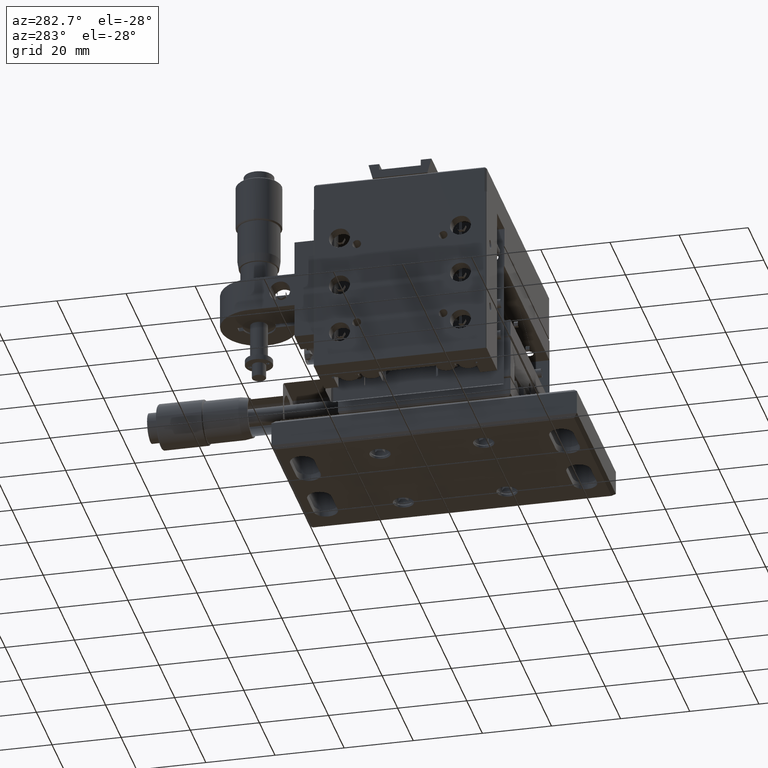
[diagram: clean part render]
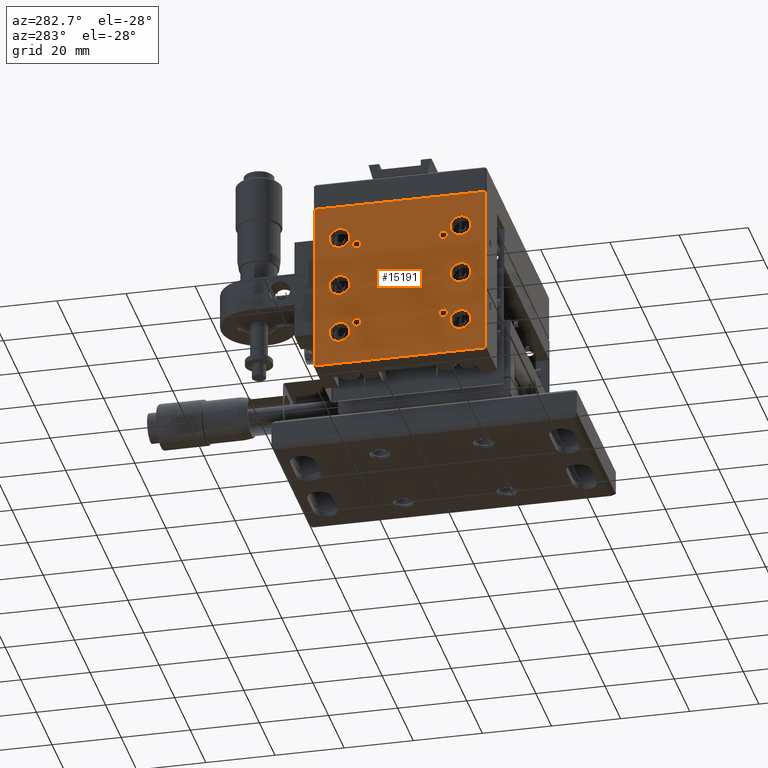
[diagram: same view with one face highlighted and labeled with its STEP entity id]
A machine part, auxiliary view. The second image highlights one B-rep face of the part: STEP entity #15191.
In plain terms, the highlighted face is a freeform B-spline surface patch.
Its self-contained STEP definition (entity closure, byte-faithful):
#11 = VERTEX_POINT ( 'NONE', #38533 ) ;
#68 = CARTESIAN_POINT ( 'NONE',  ( -45.58076767884060132, 11.21879193320685175, -1.596347866807579896 ) ) ;
#135 = CARTESIAN_POINT ( 'NONE',  ( -45.58076767884059421, 16.51599729023094554, 22.95852143334430551 ) ) ;
#402 = CARTESIAN_POINT ( 'NONE',  ( -45.58076767884060843, -13.99850119696787409, -1.154990000715617970 ) ) ;
#426 = CARTESIAN_POINT ( 'NONE',  ( -45.58076767884060843, 17.92438818958272506, 26.35894859904729159 ) ) ;
#446 = CARTESIAN_POINT ( 'NONE',  ( -45.58076767884061553, -21.83961083574874706, 8.175711831710218647 ) ) ;
#532 = CARTESIAN_POINT ( 'NONE',  ( -45.58076767884059421, -20.39673864300540629, -1.421798877075399314 ) ) ;
#632 = CARTESIAN_POINT ( 'NONE',  ( -45.58076767884060843, -16.24928257186590841, -1.755920477114400802 ) ) ;
#714 = CARTESIAN_POINT ( 'NONE',  ( -45.58076767884060132, 8.750717428134130671, 23.07812786181560227 ) ) ;
#995 = CARTESIAN_POINT ( 'NONE',  ( -45.58076767884059421, -17.37967613822270252, -2.906592281249516851 ) ) ;
#1158 = CARTESIAN_POINT ( 'NONE',  ( -45.58076767884059421, 13.16038916426250793, -6.824288168295513657 ) ) ;
#1202 = CARTESIAN_POINT ( 'NONE',  ( -45.58076767884060132, 15.39817349928732781, 7.578054600706568777 ) ) ;
#1280 = EDGE_LOOP ( 'NONE', ( #23987, #8813 ) ) ;
#1473 = CARTESIAN_POINT ( 'NONE',  ( -45.58076767884060132, 12.38131976557777136, 12.09352875609443601 ) ) ;
#1492 = CARTESIAN_POINT ( 'NONE',  ( -45.58076767884060132, -20.78010330397702177, 13.50179862840295186 ) ) ;
#1495 = CARTESIAN_POINT ( 'NONE',  ( -45.58076767884060132, -13.74928257186589953, -1.921872138184409939 ) ) ;
#1624 = CARTESIAN_POINT ( 'NONE',  ( -45.58076767884060843, 13.48549363764836073, -7.041343197752721217 ) ) ;
#1645 = CARTESIAN_POINT ( 'NONE',  ( -45.58076767884060132, 8.750717428134130671, -1.921872138184409939 ) ) ;
#1659 = CARTESIAN_POINT ( 'NONE',  ( -45.58076767884059421, 11.21900056668047263, 22.75272477057601961 ) ) ;
#1701 = CARTESIAN_POINT ( 'NONE',  ( -45.58076767884060843, 16.51594121857138120, 13.19759892138403501 ) ) ;
#1725 = CARTESIAN_POINT ( 'NONE',  ( -45.58076767884060132, -16.21735707694574558, -2.247396409549566876 ) ) ;
#1856 = CARTESIAN_POINT ( 'NONE',  ( -45.58076767884060132, 17.92438818953758783, -3.641051400913181357 ) ) ;
#1886 = CARTESIAN_POINT ( 'NONE',  ( -45.58076767884060132, 11.09213312086595771, 22.44682237214238540 ) ) ;
#1891 = CARTESIAN_POINT ( 'NONE',  ( -45.58076767884060132, 12.00071742813409870, 10.57812786181559872 ) ) ;
#1936 = CARTESIAN_POINT ( 'NONE',  ( -45.58076767884059421, 16.84104569200243517, 12.98054389190799718 ) ) ;
#1954 = CARTESIAN_POINT ( 'NONE',  ( -45.58076767884060843, -17.59697014863666809, 12.41835251884236335 ) ) ;
#2153 = CARTESIAN_POINT ( 'NONE',  ( -45.58076767884060843, 9.835325691214327648, -3.171798994635503632 ) ) ;
#2162 = VERTEX_POINT ( 'NONE', #4725 ) ;
#2324 = CARTESIAN_POINT ( 'NONE',  ( -45.58076767884060132, 18.00071742813410225, -4.421872138184409273 ) ) ;
#2354 = CARTESIAN_POINT ( 'NONE',  ( -45.58076767884059421, -14.36809825003078878, 21.98650354790006389 ) ) ;
#2561 = CARTESIAN_POINT ( 'NONE',  ( -45.58076767884060843, -21.51450636228194924, 22.95865680223612415 ) ) ;
#2812 = CARTESIAN_POINT ( 'NONE',  ( -45.58076767884059421, -15.32486281256795202, 21.85991819277547776 ) ) ;
#2966 = CARTESIAN_POINT ( 'NONE',  ( -45.58076767884060843, 10.16610916502605733, 24.32805471826214827 ) ) ;
#3010 = CARTESIAN_POINT ( 'NONE',  ( -45.58076767884060843, 9.369589087914782510, -3.013361300431705914 ) ) ;
#3022 = CARTESIAN_POINT ( 'NONE',  ( -45.58076767884059421, -20.78015937564045146, 22.65432172632728580 ) ) ;
#3206 = B_SPLINE_CURVE_WITH_KNOTS ( 'NONE', 3,
 ( #19752, #8725, #37077, #41083, #8278, #1936, #1701, #16209, #4993, #15974, #22563, #19285, #29809, #33556, #1473, #40844, #30499, #37306 ),
 .UNSPECIFIED., .F., .F.,
 ( 4, 2, 2, 2, 2, 2, 2, 2, 4 ),
 ( 0.000000000000000000, 0.1250000000000000000, 0.2500000000000000000, 0.3750000000000000000, 0.5000000000000000000, 0.6250000000000000000, 0.7500000000000000000, 0.8750000000000000000, 1.000000000000000000 ),
 .UNSPECIFIED. ) ;
#3292 = CARTESIAN_POINT ( 'NONE',  ( -45.58076767884060132, -16.99928257186589775, 10.57812786181559872 ) ) ;
#3458 = VERTEX_POINT ( 'NONE', #33040 ) ;
#3692 = CARTESIAN_POINT ( 'NONE',  ( -45.58076767884060132, 10.32624168718651703, -3.139946655567773082 ) ) ;
#4075 = CARTESIAN_POINT ( 'NONE',  ( -45.58076767884060132, 22.00072769059939759, 35.57812786181560227 ) ) ;
#4089 = VERTEX_POINT ( 'NONE', #32162 ) ;
#4176 = FACE_BOUND ( 'NONE', #35716, .T. ) ;
#4280 = CARTESIAN_POINT ( 'NONE',  ( -45.58076767884059421, -22.92316210437715895, -3.641172438193419403 ) ) ;
#4347 = CARTESIAN_POINT ( 'NONE',  ( -45.58076767884060132, -22.99928257186589775, -4.421872138184409273 ) ) ;
#4426 = CARTESIAN_POINT ( 'NONE',  ( -45.58076767884060132, -22.61888900547790371, 9.062848004871668195 ) ) ;
#4490 = CARTESIAN_POINT ( 'NONE',  ( -45.58076767884060132, 11.25071742813410047, 23.07812786181560227 ) ) ;
#4647 = CARTESIAN_POINT ( 'NONE',  ( -45.58076767884060132, 22.30071742813409941, 35.57812786181560227 ) ) ;
#4725 = CARTESIAN_POINT ( 'NONE',  ( -45.58076767884060132, -26.99927230940059530, 35.57812786181560227 ) ) ;
#4944 = CARTESIAN_POINT ( 'NONE',  ( -45.58076767884059421, 10.63190174997885507, 21.98650354790509809 ) ) ;
#4993 = CARTESIAN_POINT ( 'NONE',  ( -45.58076767884060843, 15.39817349923868584, 13.57805460070658476 ) ) ;
#5013 = CARTESIAN_POINT ( 'NONE',  ( -45.58076767884059421, -14.23240043439385083, -2.922653513068500963 ) ) ;
#5067 = CARTESIAN_POINT ( 'NONE',  ( -45.58076767884060132, 22.30071742813409941, 35.57812786181560227 ) ) ;
#5138 = CARTESIAN_POINT ( 'NONE',  ( -45.58076767884059421, 17.40313345824610280, -6.262200402050480008 ) ) ;
#5174 = CARTESIAN_POINT ( 'NONE',  ( -45.58076767884060132, 8.750717428134130671, 23.07812786181560227 ) ) ;
#5180 = CARTESIAN_POINT ( 'NONE',  ( -45.58076767884060132, 22.30071742813409941, 35.57812786181560227 ) ) ;
#5231 = CARTESIAN_POINT ( 'NONE',  ( -45.58076767884060132, -21.83950722885477091, 27.98044028510106784 ) ) ;
#5240 = CARTESIAN_POINT ( 'NONE',  ( -45.58076767884059421, -13.99839775637156514, -2.688857716266702003 ) ) ;
#5270 = CARTESIAN_POINT ( 'NONE',  ( -45.58076767884060132, 14.60326135700756822, 28.57820112293013182 ) ) ;
#5460 = CARTESIAN_POINT ( 'NONE',  ( -45.58076767884060132, -16.99928257186589775, 25.57812786181560227 ) ) ;
#5546 = B_SPLINE_CURVE_WITH_KNOTS ( 'NONE', 3,
 ( #29977, #12169, #37481, #26462, #23643, #34644, #2561, #3022, #20370, #38635, #38176, #9353, #23419, #30667, #9807, #30899, #27394, #41711 ),
 .UNSPECIFIED., .F., .F.,
 ( 4, 2, 2, 2, 2, 2, 2, 2, 4 ),
 ( 0.000000000000000000, 0.1250000000000000000, 0.2500000000000000000, 0.3750000000000000000, 0.5000000000000000000, 0.6250000000000000000, 0.7500000000000000000, 0.8750000000000000000, 1.000000000000000000 ),
 .UNSPECIFIED. ) ;
#5666 = CARTESIAN_POINT ( 'NONE',  ( -45.58076767884060132, 10.76759956560754183, -2.922653513076233889 ) ) ;
#5703 = CARTESIAN_POINT ( 'NONE',  ( -45.58076767884059421, -22.40169860196120410, 12.41845612570632973 ) ) ;
#5794 = CARTESIAN_POINT ( 'NONE',  ( -45.58076767884059421, 11.09234175432982639, 23.70931217136817892 ) ) ;
#5859 = EDGE_CURVE ( 'NONE', #14958, #23231, #6290, .T. ) ;
#6030 = CARTESIAN_POINT ( 'NONE',  ( -45.58076767884060843, 9.233835290682856467, 24.07890923673190287 ) ) ;
#6109 = CARTESIAN_POINT ( 'NONE',  ( -45.58076767884060132, 22.00072769059939759, 35.57812786181560227 ) ) ;
#6290 = B_SPLINE_CURVE_WITH_KNOTS ( 'NONE', 3,
 ( #42842, #10708, #23463, #19960, #6744, #12920, #3010, #17506, #2153, #31796, #3692, #37770, #5666, #31573, #34238, #39300, #46143, #16421 ),
 .UNSPECIFIED., .F., .F.,
 ( 4, 2, 2, 2, 2, 2, 2, 2, 4 ),
 ( 0.000000000000000000, 0.1250000000000000000, 0.2500000000000000000, 0.3750000000000000000, 0.5000000000000000000, 0.6250000000000000000, 0.7500000000000000000, 0.8750000000000000000, 1.000000000000000000 ),
 .UNSPECIFIED. ) ;
#6340 = CARTESIAN_POINT ( 'NONE',  ( -45.58076767884060132, 17.62011509069057169, 9.062726967611869355 ) ) ;
#6369 = ORIENTED_EDGE ( 'NONE', *, *, #27596, .T. ) ;
#6368 = ORIENTED_EDGE ( 'NONE', *, *, #11166, .T. ) ;
#6561 = CARTESIAN_POINT ( 'NONE',  ( -45.58076767884059421, 16.84094208514150637, 8.175815438562381132 ) ) ;
#6569 = EDGE_LOOP ( 'NONE', ( #28292, #44455 ) ) ;
#6731 = CARTESIAN_POINT ( 'NONE',  ( -45.58076767884060843, -21.51450636222868340, -7.041343197774933671 ) ) ;
#6744 = CARTESIAN_POINT ( 'NONE',  ( -45.58076767884060843, 8.999936053231385458, -2.688754275643967073 ) ) ;
#6863 = CARTESIAN_POINT ( 'NONE',  ( -45.58076767884060132, 9.233835290676427832, -0.9210907632769838038 ) ) ;
#6955 = CARTESIAN_POINT ( 'NONE',  ( -45.58076767884059421, -16.00016738737126687, -1.154886560117713623 ) ) ;
#7090 = CARTESIAN_POINT ( 'NONE',  ( -45.58076767884060132, 8.750717428134130671, -1.921872138184409939 ) ) ;
#7185 = CARTESIAN_POINT ( 'NONE',  ( -45.58076767884060132, -13.74928257186589953, -1.921872138184409939 ) ) ;
#7392 = CARTESIAN_POINT ( 'NONE',  ( -45.58076767884059421, 8.782434289587767395, 23.40353095303091990 ) ) ;
#7597 = EDGE_CURVE ( 'NONE', #16460, #9784, #3206, .T. ) ;
#7631 = CARTESIAN_POINT ( 'NONE',  ( -45.58076767884059421, 13.16038916425314653, 23.17571183171938642 ) ) ;
#7659 = CARTESIAN_POINT ( 'NONE',  ( -45.58076767884060132, -15.63046689371206810, -0.8302478242799661290 ) ) ;
#7705 = ORIENTED_EDGE ( 'NONE', *, *, #25691, .T. ) ;
#7934 = CARTESIAN_POINT ( 'NONE',  ( -45.58076767884060132, -22.99928257186589775, 10.57812786181559872 ) ) ;
#7994 = CARTESIAN_POINT ( 'NONE',  ( -45.58076767884059421, 8.909093101913111212, 22.44694355229977489 ) ) ;
#8019 = CARTESIAN_POINT ( 'NONE',  ( -45.58076767884060132, -19.60182650072639987, -1.421945399293402579 ) ) ;
#8172 = VERTEX_POINT ( 'NONE', #19580 ) ;
#8239 = CARTESIAN_POINT ( 'NONE',  ( -45.58076767884060843, 12.59840500484885517, 8.737903204823048497 ) ) ;
#8256 = CARTESIAN_POINT ( 'NONE',  ( -45.58076767884060132, -20.78010330398663186, -1.498201371595712539 ) ) ;
#8278 = CARTESIAN_POINT ( 'NONE',  ( -45.58076767884060843, 17.40302985138516689, 12.41835251884239710 ) ) ;
#8330 = B_SPLINE_CURVE_WITH_KNOTS ( 'NONE', 3,
 ( #5174, #44080, #12189, #7994, #29761, #40334, #37263, #15693, #43858, #11957, #19469, #4944, #33742, #22277, #1886, #1659, #15932, #4490 ),
 .UNSPECIFIED., .F., .F.,
 ( 4, 2, 2, 2, 2, 2, 2, 2, 4 ),
 ( 0.000000000000000000, 0.1250000000000000000, 0.2500000000000000000, 0.3750000000000000000, 0.5000000000000000000, 0.6250000000000000000, 0.7500000000000000000, 0.8750000000000000000, 1.000000000000000000 ),
 .UNSPECIFIED. ) ;
#8389 = B_SPLINE_CURVE_WITH_KNOTS ( 'NONE', 3,
 ( #12627, #22936, #22708, #33241, #12154, #1158, #1624, #29731, #29961, #36992, #44278, #15896, #30420, #5138, #19435, #41696, #34398, #28062 ),
 .UNSPECIFIED., .F., .F.,
 ( 4, 2, 2, 2, 2, 2, 2, 2, 4 ),
 ( 0.000000000000000000, 0.1250000000000000000, 0.2500000000000000000, 0.3750000000000000000, 0.5000000000000000000, 0.6250000000000000000, 0.7500000000000000000, 0.8750000000000000000, 1.000000000000000000 ),
 .UNSPECIFIED. ) ;
#8578 = CARTESIAN_POINT ( 'NONE',  ( -45.58076767884060132, -26.99927230940059530, 35.57812786181560227 ) ) ;
#8725 = CARTESIAN_POINT ( 'NONE',  ( -45.58076767884059421, 18.00071742813408093, 10.97576088579610065 ) ) ;
#8737 = CARTESIAN_POINT ( 'NONE',  ( -45.58076767884060843, -17.07561181043661946, 26.35894859907757137 ) ) ;
#8813 = ORIENTED_EDGE ( 'NONE', *, *, #43844, .T. ) ;
#8945 = B_SPLINE_CURVE_WITH_KNOTS ( 'NONE', 3,
 ( #25432, #32441, #39738, #42341, #43030, #7631, #14183, #17235, #17699, #35273, #17462, #135, #10667, #21913, #31756, #42569, #36205, #31982 ),
 .UNSPECIFIED., .F., .F.,
 ( 4, 2, 2, 2, 2, 2, 2, 2, 4 ),
 ( 0.000000000000000000, 0.1250000000000000000, 0.2500000000000000000, 0.3750000000000000000, 0.5000000000000000000, 0.6250000000000000000, 0.7500000000000000000, 0.8750000000000000000, 1.000000000000000000 ),
 .UNSPECIFIED. ) ;
#9004 = CARTESIAN_POINT ( 'NONE',  ( -45.58076767884060132, 14.21989669602791828, 28.50179862841047651 ) ) ;
#9198 = CARTESIAN_POINT ( 'NONE',  ( -45.58076767884060843, -22.61868023442222508, 27.09352875603163113 ) ) ;
#9300 = CARTESIAN_POINT ( 'NONE',  ( -45.58076767884059421, 11.25071742813410225, 23.24369638651652537 ) ) ;
#9353 = CARTESIAN_POINT ( 'NONE',  ( -45.58076767884059421, -18.48400270977244375, 22.95852143334093043 ) ) ;
#9439 = CARTESIAN_POINT ( 'NONE',  ( -45.58076767884060843, -18.48405878140675185, 13.19759892138401725 ) ) ;
#9526 = CARTESIAN_POINT ( 'NONE',  ( -45.58076767884060132, 11.25071742813410047, 23.07812786181560227 ) ) ;
#9784 = VERTEX_POINT ( 'NONE', #40711 ) ;
#9807 = CARTESIAN_POINT ( 'NONE',  ( -45.58076767884060132, -17.37988490930938923, 24.06272696770651720 ) ) ;
#9974 = CARTESIAN_POINT ( 'NONE',  ( -45.58076767884060843, 10.63184576832021477, 24.16961702406754142 ) ) ;
#10046 = CARTESIAN_POINT ( 'NONE',  ( -45.58076767884060132, -13.74928257186589953, 23.07812786181560227 ) ) ;
#10361 = CARTESIAN_POINT ( 'NONE',  ( -45.58076767884060843, 9.675193169075331667, -0.7037976208074270268 ) ) ;
#10460 = CARTESIAN_POINT ( 'NONE',  ( -45.58076767884060132, -16.99928257186590486, -4.819888405889766858 ) ) ;
#10464 = CARTESIAN_POINT ( 'NONE',  ( -45.58076767884060843, -14.36815423166413552, -0.8303829759370614516 ) ) ;
#10497 = FACE_BOUND ( 'NONE', #44097, .T. ) ;
#10640 = ORIENTED_EDGE ( 'NONE', *, *, #26484, .T. ) ;
#10667 = CARTESIAN_POINT ( 'NONE',  ( -45.58076767884060132, 16.84094208517106850, 23.17581543859200011 ) ) ;
#10704 = ORIENTED_EDGE ( 'NONE', *, *, #19588, .T. ) ;
#10706 = CARTESIAN_POINT ( 'NONE',  ( -45.58076767884060132, 12.00071742813409870, -4.421872138184409273 ) ) ;
#10708 = CARTESIAN_POINT ( 'NONE',  ( -45.58076767884059421, 8.750717428134137776, -2.087440662865537533 ) ) ;
#10727 = FACE_BOUND ( 'NONE', #37861, .T. ) ;
#11132 = CARTESIAN_POINT ( 'NONE',  ( -45.58076767884060132, 8.750717428134130671, 23.07812786181560227 ) ) ;
#11166 = EDGE_CURVE ( 'NONE', #34585, #34847, #11779, .T. ) ;
#11271 = CARTESIAN_POINT ( 'NONE',  ( -45.58076767884060132, 18.00071742813410225, 10.57812786181559872 ) ) ;
#11650 = CARTESIAN_POINT ( 'NONE',  ( -45.58076767884060132, 12.00071742813409870, 25.57812786181560227 ) ) ;
#11672 = CARTESIAN_POINT ( 'NONE',  ( -45.58076767884060132, -17.37988490930939278, 9.062726967589805227 ) ) ;
#11779 = B_SPLINE_CURVE_WITH_KNOTS ( 'NONE', 3,
 ( #7185, #14682, #32469, #35763, #402, #39770, #10464, #25697, #21469, #24758, #39059, #7659, #43295, #6955, #40000, #21240, #632, #18437 ),
 .UNSPECIFIED., .F., .F.,
 ( 4, 2, 2, 2, 2, 2, 2, 2, 4 ),
 ( 0.000000000000000000, 0.1249999999999995559, 0.2499999999999991118, 0.3749999999999986677, 0.4999999999999982236, 0.6249999999999977796, 0.7499999999999985567, 0.8749999999999993339, 1.000000000000000000 ),
 .UNSPECIFIED. ) ;
#11921 = VERTEX_POINT ( 'NONE', #3292 ) ;
#11957 = CARTESIAN_POINT ( 'NONE',  ( -45.58076767884059421, 10.16610916505379869, 21.82805471827589727 ) ) ;
#11966 = CARTESIAN_POINT ( 'NONE',  ( -45.58076767884061553, 15.78153816021233347, 7.654457095203651029 ) ) ;
#12120 = FACE_BOUND ( 'NONE', #1280, .T. ) ;
#12154 = CARTESIAN_POINT ( 'NONE',  ( -45.58076767884060843, 12.59840500488652104, -6.262096795192582555 ) ) ;
#12169 = CARTESIAN_POINT ( 'NONE',  ( -45.58076767884059421, -22.99928257186590486, 25.18049483781102893 ) ) ;
#12189 = CARTESIAN_POINT ( 'NONE',  ( -45.58076767884060843, 8.782642923076926067, 22.75260359041863012 ) ) ;
#12222 = EDGE_CURVE ( 'NONE', #3458, #11, #33405, .T. ) ;
#12354 = FACE_OUTER_BOUND ( 'NONE', #33828, .T. ) ;
#12483 = CARTESIAN_POINT ( 'NONE',  ( -45.58076767884059421, -19.21840576816413915, 28.50193399730944677 ) ) ;
#12491 = CARTESIAN_POINT ( 'NONE',  ( -45.58076767884060132, -16.99928257186589775, 10.57812786181559872 ) ) ;
#12495 = CARTESIAN_POINT ( 'NONE',  ( -45.58076767884059421, -16.00006394677960486, -2.688754275637528224 ) ) ;
#12528 = ORIENTED_EDGE ( 'NONE', *, *, #36225, .T. ) ;
#12555 = EDGE_CURVE ( 'NONE', #27737, #36641, #16638, .T. ) ;
#12627 = CARTESIAN_POINT ( 'NONE',  ( -45.58076767884060132, 12.00071742813409870, -4.421872138184409273 ) ) ;
#12659 = CARTESIAN_POINT ( 'NONE',  ( -45.58076767884059421, -13.78099943331952559, 22.75272477058241805 ) ) ;
#12911 = VERTEX_POINT ( 'NONE', #714 ) ;
#12920 = CARTESIAN_POINT ( 'NONE',  ( -45.58076767884059421, 9.233731850070475033, -2.922756953691232784 ) ) ;
#12949 = CARTESIAN_POINT ( 'NONE',  ( -45.58076767884060843, -18.48405878137706893, 28.19759892138955593 ) ) ;
#12979 = CARTESIAN_POINT ( 'NONE',  ( -45.58076767884059421, -13.78120806679575594, 23.40365213318358428 ) ) ;
#12985 = CARTESIAN_POINT ( 'NONE',  ( -45.58076767884059421, 13.48543756604987998, 28.19773429028852618 ) ) ;
#13078 = CARTESIAN_POINT ( 'NONE',  ( -45.58076767884060132, -16.99928257186589775, -4.421872138184409273 ) ) ;
#13122 = CARTESIAN_POINT ( 'NONE',  ( -45.58076767884060132, -15.63041091207643518, 21.98663869957751515 ) ) ;
#13298 = CARTESIAN_POINT ( 'NONE',  ( -45.58076767884060132, -27.29928257186589846, -14.42187213818439950 ) ) ;
#13301 = CARTESIAN_POINT ( 'NONE',  ( -45.58076767884059421, -20.78015937569371374, -7.345678273661668811 ) ) ;
#13460 = EDGE_LOOP ( 'NONE', ( #35373, #6369 ) ) ;
#13517 = CARTESIAN_POINT ( 'NONE',  ( -45.58076767884060132, -22.99928257186589775, -4.421872138184409273 ) ) ;
#13571 = CARTESIAN_POINT ( 'NONE',  ( -45.58076767884060132, -15.16467430878300604, 21.82820100535529662 ) ) ;
#13578 = CARTESIAN_POINT ( 'NONE',  ( -45.58076767884059421, 18.00071742813408449, 10.18011159419383027 ) ) ;
#13751 = CARTESIAN_POINT ( 'NONE',  ( -45.58076767884060132, -18.15905791479926634, -6.824184561378418223 ) ) ;
#13795 = CARTESIAN_POINT ( 'NONE',  ( -45.58076767884060132, 22.30071742813409941, -14.42187213818439950 ) ) ;
#13962 = EDGE_CURVE ( 'NONE', #31967, #35972, #5546, .T. ) ;
#13981 = CARTESIAN_POINT ( 'NONE',  ( -45.58076767884060132, -17.37988490930938923, -5.937273032304538845 ) ) ;
#14003 = CARTESIAN_POINT ( 'NONE',  ( -45.58076767884060132, 15.39817349926060608, 28.57805460070106918 ) ) ;
#14126 = EDGE_LOOP ( 'NONE', ( #42483, #32257 ) ) ;
#14183 = CARTESIAN_POINT ( 'NONE',  ( -45.58076767884060843, 13.48549363772838561, 22.95865680222507521 ) ) ;
#14227 = CARTESIAN_POINT ( 'NONE',  ( -45.58076767884058711, 12.00071742813408271, -4.023855870584901240 ) ) ;
#14248 = FACE_BOUND ( 'NONE', #6569, .T. ) ;
#14298 = EDGE_CURVE ( 'NONE', #39481, #12911, #44738, .T. ) ;
#14349 = EDGE_CURVE ( 'NONE', #38583, #21538, #8945, .T. ) ;
#14357 = EDGE_LOOP ( 'NONE', ( #10704, #29847 ) ) ;
#14479 = FACE_BOUND ( 'NONE', #14357, .T. ) ;
#14682 = CARTESIAN_POINT ( 'NONE',  ( -45.58076767884062264, -13.74928257186588709, -1.756303613501464911 ) ) ;
#14707 = CARTESIAN_POINT ( 'NONE',  ( -45.58076767884060132, 16.84104569201182500, 27.98054389190408742 ) ) ;
#14724 = CARTESIAN_POINT ( 'NONE',  ( -45.58076767884059421, -20.78015937557338688, 7.654321726316216434 ) ) ;
#14812 = CARTESIAN_POINT ( 'NONE',  ( -45.58076767884060132, -21.83950722888982554, -2.019559714966998598 ) ) ;
#14958 = VERTEX_POINT ( 'NONE', #1645 ) ;
#15039 = CARTESIAN_POINT ( 'NONE',  ( -45.58076767884060843, -18.48405878139649161, -1.802401078616045149 ) ) ;
#15191 = ADVANCED_FACE ( 'NONE', ( #21977, #36267, #10497, #46390, #4176, #14248, #42863, #10727, #14479, #12120, #12354 ), #36018, .T. ) ;
#15315 = CARTESIAN_POINT ( 'NONE',  ( -45.58076767884060132, 12.00071742813409870, 25.57812786181560227 ) ) ;
#15526 = B_SPLINE_CURVE_WITH_KNOTS ( 'NONE', 3,
 ( #1891, #44795, #43867, #26039, #8239, #22519, #36812, #22753, #19018, #1202, #11966, #26267, #6561, #42187, #6340, #27422, #13578, #41738 ),
 .UNSPECIFIED., .F., .F.,
 ( 4, 2, 2, 2, 2, 2, 2, 2, 4 ),
 ( 0.000000000000000000, 0.1250000000000000278, 0.2500000000000000555, 0.3750000000000001110, 0.5000000000000000000, 0.6249999999999998890, 0.7499999999999998890, 0.8750000000000000000, 1.000000000000000000 ),
 .UNSPECIFIED. ) ;
#15587 = CARTESIAN_POINT ( 'NONE',  ( -45.58076767884060132, -27.29928257186589846, 35.57812786181560227 ) ) ;
#15627 = CARTESIAN_POINT ( 'NONE',  ( -45.58076767884060132, -27.29928257186589846, 35.57812786181560227 ) ) ;
#15693 = CARTESIAN_POINT ( 'NONE',  ( -45.58076767884059421, 9.675137187429749375, 21.85991819277547776 ) ) ;
#15738 = CARTESIAN_POINT ( 'NONE',  ( -45.58076767884060132, -22.99928257186589775, 10.57812786181559872 ) ) ;
#15754 = CARTESIAN_POINT ( 'NONE',  ( -45.58076767884059421, -16.99928257186590486, 25.97576088583799603 ) ) ;
#15896 = CARTESIAN_POINT ( 'NONE',  ( -45.58076767884059421, 16.51599729023103791, -7.041478566655619886 ) ) ;
#15932 = CARTESIAN_POINT ( 'NONE',  ( -45.58076767884060132, 11.25071742813410580, 22.91217620072814753 ) ) ;
#15974 = CARTESIAN_POINT ( 'NONE',  ( -45.58076767884059421, 14.60326135702948847, 13.57820112292461445 ) ) ;
#15989 = CARTESIAN_POINT ( 'NONE',  ( -45.58076767884060843, -17.59697014859676045, 27.41835251880796420 ) ) ;
#15999 = CARTESIAN_POINT ( 'NONE',  ( -45.58076767884059421, -15.76626814991856662, -2.922756953697667193 ) ) ;
#16116 = ORIENTED_EDGE ( 'NONE', *, *, #36156, .F. ) ;
#16209 = CARTESIAN_POINT ( 'NONE',  ( -45.58076767884059421, 15.78159423188746402, 13.50193399731496591 ) ) ;
#16228 = CARTESIAN_POINT ( 'NONE',  ( -45.58076767884059421, -19.21840576813444912, 13.50193399731498189 ) ) ;
#16230 = CARTESIAN_POINT ( 'NONE',  ( -45.58076767884060132, -13.78099943331952382, -2.247275229417568632 ) ) ;
#16259 = CARTESIAN_POINT ( 'NONE',  ( -45.58076767884059421, 12.07683789562282151, 26.35882756184409104 ) ) ;
#16361 = CARTESIAN_POINT ( 'NONE',  ( -45.58076767884060132, 15.78159423186078314, -1.498066002685050746 ) ) ;
#16421 = CARTESIAN_POINT ( 'NONE',  ( -45.58076767884060132, 11.25071742813410047, -1.921872138184409939 ) ) ;
#16460 = VERTEX_POINT ( 'NONE', #11271 ) ;
#16461 = CARTESIAN_POINT ( 'NONE',  ( -45.58076767884059421, -16.99928257186590841, 10.97576088579829978 ) ) ;
#16529 = ORIENTED_EDGE ( 'NONE', *, *, #36515, .T. ) ;
#16596 = CARTESIAN_POINT ( 'NONE',  ( -45.58076767884060132, 14.21989669605598827, -1.498201371572446039 ) ) ;
#16631 = CARTESIAN_POINT ( 'NONE',  ( -45.58076767884059421, -13.99839775636834460, 22.31114228374107356 ) ) ;
#16638 = B_SPLINE_CURVE_WITH_KNOTS ( 'NONE', 3,
 ( #20922, #17172, #12979, #38742, #16717, #45340, #41591, #23756, #38063, #45565, #31238, #41360, #34300, #38513, #38286, #20479, #34525, #27033 ),
 .UNSPECIFIED., .F., .F.,
 ( 4, 2, 2, 2, 2, 2, 2, 2, 4 ),
 ( 0.000000000000000000, 0.1249999999999995559, 0.2499999999999991118, 0.3749999999999986677, 0.4999999999999982236, 0.6249999999999977796, 0.7499999999999985567, 0.8749999999999993339, 1.000000000000000000 ),
 .UNSPECIFIED. ) ;
#16717 = CARTESIAN_POINT ( 'NONE',  ( -45.58076767884060843, -13.99850119696584372, 23.84500999928932075 ) ) ;
#16857 = CARTESIAN_POINT ( 'NONE',  ( -45.58076767884060843, -16.00006394676220012, 22.31124572434044850 ) ) ;
#16890 = EDGE_CURVE ( 'NONE', #28495, #4089, #35441, .T. ) ;
#17083 = B_SPLINE_CURVE_WITH_KNOTS ( 'NONE', 3,
 ( #20224, #30980, #1725, #23274, #12495, #15999, #34041, #37812, #45094, #34503, #45320, #37329, #5013, #5240, #19307, #16230, #33577, #1495 ),
 .UNSPECIFIED., .F., .F.,
 ( 4, 2, 2, 2, 2, 2, 2, 2, 4 ),
 ( 0.000000000000000000, 0.1249999999999992506, 0.2499999999999985012, 0.3749999999999977796, 0.4999999999999982236, 0.6249999999999986677, 0.7499999999999991118, 0.8749999999999996669, 1.000000000000000000 ),
 .UNSPECIFIED. ) ;
#17172 = CARTESIAN_POINT ( 'NONE',  ( -45.58076767884062264, -13.74928257186589065, 23.24369638649442749 ) ) ;
#17235 = CARTESIAN_POINT ( 'NONE',  ( -45.58076767884059421, 14.21984062434940910, 22.65432172633833829 ) ) ;
#17462 = CARTESIAN_POINT ( 'NONE',  ( -45.58076767884060132, 15.78153816022790501, 22.65445709521910800 ) ) ;
#17506 = CARTESIAN_POINT ( 'NONE',  ( -45.58076767884059421, 9.675137187440761011, -3.140081807215301613 ) ) ;
#17699 = CARTESIAN_POINT ( 'NONE',  ( -45.58076767884060843, 14.60326135705601480, 22.57820112294667680 ) ) ;
#18221 = CARTESIAN_POINT ( 'NONE',  ( -45.58076767884061553, 18.00071742813408804, 25.97576088585456944 ) ) ;
#18330 = CARTESIAN_POINT ( 'NONE',  ( -45.58076767884059421, -16.99928257186590130, -4.024239114179637866 ) ) ;
#18437 = CARTESIAN_POINT ( 'NONE',  ( -45.58076767884060132, -16.24928257186589775, -1.921872138184409939 ) ) ;
#18572 = CARTESIAN_POINT ( 'NONE',  ( -45.58076767884060132, -22.99928257186590486, -4.023855870558501024 ) ) ;
#18705 = CARTESIAN_POINT ( 'NONE',  ( -45.58076767884060132, 22.30071742813409941, -14.42187213818439950 ) ) ;
#18951 = CARTESIAN_POINT ( 'NONE',  ( -45.58076767884060843, -16.99928257186590841, 10.18011159421590150 ) ) ;
#19018 = CARTESIAN_POINT ( 'NONE',  ( -45.58076767884060843, 14.60326135698085004, 7.578201122924627775 ) ) ;
#19034 = CARTESIAN_POINT ( 'NONE',  ( -45.58076767884059421, -21.51456243393576173, -1.802265709705383134 ) ) ;
#19145 = CARTESIAN_POINT ( 'NONE',  ( -45.58076767884060132, 11.25071742813410047, 23.07812786181560227 ) ) ;
#19240 = B_SPLINE_CURVE_WITH_KNOTS ( 'NONE', 3,
 ( #12491, #16461, #34038, #37808, #1954, #44143, #9439, #16228, #22811, #33808, #1492, #41565, #27009, #5703, #19995, #34276, #23731, #41103 ),
 .UNSPECIFIED., .F., .F.,
 ( 4, 2, 2, 2, 2, 2, 2, 2, 4 ),
 ( 0.000000000000000000, 0.1250000000000000000, 0.2500000000000000000, 0.3750000000000000000, 0.5000000000000000000, 0.6250000000000000000, 0.7500000000000000000, 0.8750000000000000000, 1.000000000000000000 ),
 .UNSPECIFIED. ) ;
#19285 = CARTESIAN_POINT ( 'NONE',  ( -45.58076767884059421, 13.48543756609362454, 13.19773429032121292 ) ) ;
#19307 = CARTESIAN_POINT ( 'NONE',  ( -45.58076767884061553, -13.90786687913407604, -2.553177627864032573 ) ) ;
#19435 = CARTESIAN_POINT ( 'NONE',  ( -45.58076767884060132, 17.62011509069057169, -5.937273032388168836 ) ) ;
#19469 = CARTESIAN_POINT ( 'NONE',  ( -45.58076767884060132, 10.32624168720219338, 21.86005334444789838 ) ) ;
#19580 = CARTESIAN_POINT ( 'NONE',  ( -45.58076767884060132, 22.30071742813409941, 35.57812786181560227 ) ) ;
#19588 = EDGE_CURVE ( 'NONE', #11, #3458, #8389, .T. ) ;
#19752 = CARTESIAN_POINT ( 'NONE',  ( -45.58076767884060132, 18.00071742813410225, 10.57812786181559872 ) ) ;
#19882 = ORIENTED_EDGE ( 'NONE', *, *, #28448, .T. ) ;
#19960 = CARTESIAN_POINT ( 'NONE',  ( -45.58076767884059421, 8.909093101919561164, -2.553056447711200772 ) ) ;
#19989 = CARTESIAN_POINT ( 'NONE',  ( -45.58076767884060132, -20.78010330396794814, 28.50179862839000933 ) ) ;
#19995 = CARTESIAN_POINT ( 'NONE',  ( -45.58076767884060132, -22.61868023442223574, 12.09352875600413668 ) ) ;
#20079 = CARTESIAN_POINT ( 'NONE',  ( -45.58076767884059421, 10.32629766886083367, 24.29633753084187120 ) ) ;
#20224 = CARTESIAN_POINT ( 'NONE',  ( -45.58076767884060132, -16.24928257186589775, -1.921872138184409939 ) ) ;
#20313 = CARTESIAN_POINT ( 'NONE',  ( -45.58076767884060132, 8.909301735402273437, 23.70943335151308418 ) ) ;
#20341 = CARTESIAN_POINT ( 'NONE',  ( -45.58076767884059421, -22.99928257186590486, -4.819505162222100125 ) ) ;
#20370 = CARTESIAN_POINT ( 'NONE',  ( -45.58076767884060132, -20.39673864296584682, 22.57820112293564918 ) ) ;
#20479 = CARTESIAN_POINT ( 'NONE',  ( -45.58076767884060132, -16.21756571041226991, 23.40353095304736897 ) ) ;
#20570 = CARTESIAN_POINT ( 'NONE',  ( -45.58076767884059421, -17.59686654181311738, -6.262200402109680653 ) ) ;
#20922 = CARTESIAN_POINT ( 'NONE',  ( -45.58076767884060132, -13.74928257186589953, 23.07812786181560227 ) ) ;
#21016 = CARTESIAN_POINT ( 'NONE',  ( -45.58076767884060132, -19.21846183978770028, -7.345542904796352524 ) ) ;
#21150 = CARTESIAN_POINT ( 'NONE',  ( -45.58076767884061553, 8.782434289587767395, -1.596469046962250227 ) ) ;
#21240 = CARTESIAN_POINT ( 'NONE',  ( -45.58076767884060132, -16.21756571041226991, -1.596469046962283089 ) ) ;
#21251 = CARTESIAN_POINT ( 'NONE',  ( -45.58076767884060132, 12.59830139800654614, -2.581543874334001565 ) ) ;
#21308 = ORIENTED_EDGE ( 'NONE', *, *, #34988, .T. ) ;
#21378 = CARTESIAN_POINT ( 'NONE',  ( -45.58076767884060132, 11.25071742813410047, -1.921872138184409939 ) ) ;
#21469 = CARTESIAN_POINT ( 'NONE',  ( -45.58076767884060843, -14.83389083495530691, -0.6719452817332642880 ) ) ;
#21538 = VERTEX_POINT ( 'NONE', #22679 ) ;
#21913 = CARTESIAN_POINT ( 'NONE',  ( -45.58076767884059421, 17.40313345821654067, 23.73779959791999516 ) ) ;
#21977 = FACE_BOUND ( 'NONE', #13460, .T. ) ;
#22042 = B_SPLINE_CURVE_WITH_KNOTS ( 'NONE', 1,
 ( #25425, #39247 ),
 .UNSPECIFIED., .F., .F.,
 ( 2, 2 ),
 ( 0.000000000000000000, 1.000000000000000000 ),
 .UNSPECIFIED. ) ;
#22189 = ORIENTED_EDGE ( 'NONE', *, *, #35703, .T. ) ;
#22277 = CARTESIAN_POINT ( 'NONE',  ( -45.58076767884059421, 11.00160224363035688, 22.31114228374432074 ) ) ;
#22519 = CARTESIAN_POINT ( 'NONE',  ( -45.58076767884061553, 13.16038916430017558, 8.175711831688850850 ) ) ;
#22561 = CARTESIAN_POINT ( 'NONE',  ( -45.58076767884060132, -13.74928257186589953, -1.921872138184409939 ) ) ;
#22563 = CARTESIAN_POINT ( 'NONE',  ( -45.58076767884060132, 14.21989669598416661, 13.50179862837778444 ) ) ;
#22679 = CARTESIAN_POINT ( 'NONE',  ( -45.58076767884060132, 18.00071742813410225, 25.57812786181560227 ) ) ;
#22708 = CARTESIAN_POINT ( 'NONE',  ( -45.58076767884060843, 12.07704666670889893, -5.202692875456001786 ) ) ;
#22753 = CARTESIAN_POINT ( 'NONE',  ( -45.58076767884061553, 14.21984062442946950, 7.654321726316217323 ) ) ;
#22811 = CARTESIAN_POINT ( 'NONE',  ( -45.58076767884060132, -19.60182650073932109, 13.57805460070658476 ) ) ;
#22936 = CARTESIAN_POINT ( 'NONE',  ( -45.58076767884059421, 12.00071742813408271, -4.819505162206632498 ) ) ;
#23231 = VERTEX_POINT ( 'NONE', #34615 ) ;
#23274 = CARTESIAN_POINT ( 'NONE',  ( -45.58076767884060132, -16.09090689806425090, -2.553056447732031220 ) ) ;
#23302 = CARTESIAN_POINT ( 'NONE',  ( -45.58076767884060132, 13.16049277108957938, 27.98044028502068414 ) ) ;
#23419 = CARTESIAN_POINT ( 'NONE',  ( -45.58076767884060132, -18.15905791479147879, 23.17581543862941018 ) ) ;
#23463 = CARTESIAN_POINT ( 'NONE',  ( -45.58076767884060843, 8.782642923070477892, -2.247396409570399101 ) ) ;
#23529 = CARTESIAN_POINT ( 'NONE',  ( -45.58076767884059421, 12.00071742813408093, 25.97614412947899964 ) ) ;
#23630 = CARTESIAN_POINT ( 'NONE',  ( -45.58076767884060843, 18.00071742813408449, -4.024239114215001578 ) ) ;
#23643 = CARTESIAN_POINT ( 'NONE',  ( -45.58076767884060843, -22.40159499510657426, 23.73790320478682858 ) ) ;
#23731 = CARTESIAN_POINT ( 'NONE',  ( -45.58076767884060132, -22.99928257186590486, 10.97614412945257278 ) ) ;
#23756 = CARTESIAN_POINT ( 'NONE',  ( -45.58076767884060843, -14.67370233113005895, 24.29633753084187120 ) ) ;
#23821 = CARTESIAN_POINT ( 'NONE',  ( -45.58076767884060843, 11.21879193321660750, 23.40365213317582160 ) ) ;
#23987 = ORIENTED_EDGE ( 'NONE', *, *, #14349, .T. ) ;
#24660 = CARTESIAN_POINT ( 'NONE',  ( -45.58076767884060132, 9.369533106280210077, -0.8302478242831672350 ) ) ;
#24754 = CARTESIAN_POINT ( 'NONE',  ( -45.58076767884059421, -18.48400270975350779, -7.041478566640149594 ) ) ;
#24758 = CARTESIAN_POINT ( 'NONE',  ( -45.58076767884060132, -15.16467430877649214, -0.6717989946355326092 ) ) ;
#24783 = CARTESIAN_POINT ( 'NONE',  ( -45.58076767884060132, 16.51594121855802300, 28.19759892138956658 ) ) ;
#24892 = CARTESIAN_POINT ( 'NONE',  ( -45.58076767884060843, 8.909301735402273437, -1.290566648493848723 ) ) ;
#24960 = ORIENTED_EDGE ( 'NONE', *, *, #46132, .T. ) ;
#24997 = CARTESIAN_POINT ( 'NONE',  ( -45.58076767884060132, 12.38131976557776959, -2.906471243958479000 ) ) ;
#25425 = CARTESIAN_POINT ( 'NONE',  ( -45.58076767884060132, 22.30071742813409941, -14.42187213818439950 ) ) ;
#25432 = CARTESIAN_POINT ( 'NONE',  ( -45.58076767884060132, 12.00071742813409870, 25.57812786181560227 ) ) ;
#25501 = CARTESIAN_POINT ( 'NONE',  ( -45.58076767884060132, -18.48400270977220927, 7.958521433352119701 ) ) ;
#25585 = EDGE_CURVE ( 'NONE', #12911, #39481, #8330, .T. ) ;
#25691 = EDGE_CURVE ( 'NONE', #36641, #27737, #46367, .T. ) ;
#25697 = CARTESIAN_POINT ( 'NONE',  ( -45.58076767884060132, -14.67370233115485867, -0.7036624691535328102 ) ) ;
#26039 = CARTESIAN_POINT ( 'NONE',  ( -45.58076767884060132, 12.38111099450730102, 9.062848004858901518 ) ) ;
#26166 = B_SPLINE_CURVE_WITH_KNOTS ( 'NONE', 1,
 ( #37269, #5180 ),
 .UNSPECIFIED., .F., .F.,
 ( 2, 2 ),
 ( 0.9939518198077679223, 1.000000000000000000 ),
 .UNSPECIFIED. ) ;
#26198 = CARTESIAN_POINT ( 'NONE',  ( -45.58076767884059421, -22.92295333332149454, 9.797307124568932934 ) ) ;
#26267 = CARTESIAN_POINT ( 'NONE',  ( -45.58076767884059421, 16.51599729024652063, 7.958521433359853070 ) ) ;
#26462 = CARTESIAN_POINT ( 'NONE',  ( -45.58076767884059421, -22.61888900551108961, 24.06284800488567299 ) ) ;
#26484 = EDGE_CURVE ( 'NONE', #35561, #8172, #26166, .T. ) ;
#26491 = EDGE_CURVE ( 'NONE', #9784, #16460, #15526, .T. ) ;
#27009 = CARTESIAN_POINT ( 'NONE',  ( -45.58076767884060132, -21.83950722888979712, 12.98044028504406278 ) ) ;
#27033 = CARTESIAN_POINT ( 'NONE',  ( -45.58076767884060132, -16.24928257186589775, 23.07812786181560227 ) ) ;
#27238 = CARTESIAN_POINT ( 'NONE',  ( -45.58076767884060132, -19.60182650079303457, 28.57805460070107273 ) ) ;
#27267 = EDGE_LOOP ( 'NONE', ( #21308, #28133 ) ) ;
#27394 = CARTESIAN_POINT ( 'NONE',  ( -45.58076767884060132, -16.99928257186590486, 25.18011159409918776 ) ) ;
#27422 = CARTESIAN_POINT ( 'NONE',  ( -45.58076767884060843, 17.92459696064538832, 9.797428161828740656 ) ) ;
#27470 = ORIENTED_EDGE ( 'NONE', *, *, #30858, .T. ) ;
#27596 = EDGE_CURVE ( 'NONE', #23231, #14958, #28800, .T. ) ;
#27737 = VERTEX_POINT ( 'NONE', #30710 ) ;
#27797 = ORIENTED_EDGE ( 'NONE', *, *, #26491, .T. ) ;
#27829 = CARTESIAN_POINT ( 'NONE',  ( -45.58076767884060132, -27.29928257186589846, 35.57812786181560227 ) ) ;
#27871 = CARTESIAN_POINT ( 'NONE',  ( -45.58076767884059421, -16.24928257186590486, 22.91255933711144976 ) ) ;
#28062 = CARTESIAN_POINT ( 'NONE',  ( -45.58076767884060132, 18.00071742813410225, -4.421872138184409273 ) ) ;
#28133 = ORIENTED_EDGE ( 'NONE', *, *, #45726, .T. ) ;
#28292 = ORIENTED_EDGE ( 'NONE', *, *, #16890, .T. ) ;
#28405 = CARTESIAN_POINT ( 'NONE',  ( -45.58076767884060132, 8.999832612625535688, -1.154886560125514716 ) ) ;
#28448 = EDGE_CURVE ( 'NONE', #29491, #30715, #22042, .T. ) ;
#28495 = VERTEX_POINT ( 'NONE', #4347 ) ;
#28639 = CARTESIAN_POINT ( 'NONE',  ( -45.58076767884060843, 11.09234175433958214, -1.290687828648518831 ) ) ;
#28800 = B_SPLINE_CURVE_WITH_KNOTS ( 'NONE', 3,
 ( #21378, #35207, #68, #28639, #42046, #31691, #45799, #46263, #42503, #42963, #10361, #24660, #6863, #28405, #24892, #21150, #39192, #7090 ),
 .UNSPECIFIED., .F., .F.,
 ( 4, 2, 2, 2, 2, 2, 2, 2, 4 ),
 ( 0.000000000000000000, 0.1250000000000001110, 0.2500000000000002220, 0.3750000000000002220, 0.5000000000000002220, 0.6250000000000002220, 0.7500000000000002220, 0.8750000000000001110, 1.000000000000000000 ),
 .UNSPECIFIED. ) ;
#29011 = CARTESIAN_POINT ( 'NONE',  ( -45.58076767884058000, -19.60182650071268284, 7.578054600706565225 ) ) ;
#29129 = B_SPLINE_CURVE_WITH_KNOTS ( 'NONE', 3,
 ( #39311, #18221, #426, #29224, #31807, #14707, #24783, #46152, #14003, #5270, #9004, #12985, #23302, #38069, #37836, #16259, #23529, #11650 ),
 .UNSPECIFIED., .F., .F.,
 ( 4, 2, 2, 2, 2, 2, 2, 2, 4 ),
 ( 0.000000000000000000, 0.1250000000000002776, 0.2500000000000005551, 0.3750000000000008327, 0.5000000000000011102, 0.6250000000000007772, 0.7500000000000005551, 0.8750000000000002220, 1.000000000000000000 ),
 .UNSPECIFIED. ) ;
#29224 = CARTESIAN_POINT ( 'NONE',  ( -45.58076767884061553, 17.62032386175323495, 27.09340771877452170 ) ) ;
#29242 = CARTESIAN_POINT ( 'NONE',  ( -45.58076767884059421, -22.99928257186590130, 10.18049483774480279 ) ) ;
#29491 = VERTEX_POINT ( 'NONE', #13795 ) ;
#29562 = CARTESIAN_POINT ( 'NONE',  ( -45.58076767884059421, -18.15895430801087684, -2.019456108073201417 ) ) ;
#29731 = CARTESIAN_POINT ( 'NONE',  ( -45.58076767884059421, 14.21984062442943397, -7.345678273683781789 ) ) ;
#29761 = CARTESIAN_POINT ( 'NONE',  ( -45.58076767884060843, 8.999936053262700852, 22.31124572432918285 ) ) ;
#29784 = CARTESIAN_POINT ( 'NONE',  ( -45.58076767884059421, -22.40169860196118279, -2.581543874282600459 ) ) ;
#29809 = CARTESIAN_POINT ( 'NONE',  ( -45.58076767884060132, 13.16049277116444038, 12.98044028508449443 ) ) ;
#29847 = ORIENTED_EDGE ( 'NONE', *, *, #12222, .T. ) ;
#29961 = CARTESIAN_POINT ( 'NONE',  ( -45.58076767884060843, 14.60326135700277561, -7.421798877075364231 ) ) ;
#29977 = CARTESIAN_POINT ( 'NONE',  ( -45.58076767884060132, -22.99928257186589775, 25.57812786181560227 ) ) ;
#30055 = CARTESIAN_POINT ( 'NONE',  ( -45.58076767884059421, -18.15895430801562682, 27.98054389194243541 ) ) ;
#30376 = CARTESIAN_POINT ( 'NONE',  ( -45.58076767884059421, 9.369533106281537016, 24.16975217572053936 ) ) ;
#30420 = CARTESIAN_POINT ( 'NONE',  ( -45.58076767884060132, 16.84094208514150637, -6.824184561437618868 ) ) ;
#30421 = CARTESIAN_POINT ( 'NONE',  ( -45.58076767884059421, 17.62032386179837218, -2.906592281265114153 ) ) ;
#30453 = CARTESIAN_POINT ( 'NONE',  ( -45.58076767884060132, -14.23240043439707847, 22.07734648692371948 ) ) ;
#30499 = CARTESIAN_POINT ( 'NONE',  ( -45.58076767884060132, 12.00071742813408449, 10.97614412936226813 ) ) ;
#30511 = CARTESIAN_POINT ( 'NONE',  ( -45.58076767884059421, -21.51456243395445256, 28.19773429030900047 ) ) ;
#30655 = CARTESIAN_POINT ( 'NONE',  ( -45.58076767884060132, 15.39817349928719104, -1.421945399293435441 ) ) ;
#30667 = CARTESIAN_POINT ( 'NONE',  ( -45.58076767884059421, -17.59686654182090493, 23.73779959788258154 ) ) ;
#30710 = CARTESIAN_POINT ( 'NONE',  ( -45.58076767884060132, -13.74928257186589953, 23.07812786181560227 ) ) ;
#30715 = VERTEX_POINT ( 'NONE', #41225 ) ;
#30845 = CARTESIAN_POINT ( 'NONE',  ( -45.58076767884060843, 10.76770300620174226, 24.07901267731153183 ) ) ;
#30858 = EDGE_CURVE ( 'NONE', #30715, #37189, #35720, .T. ) ;
#30886 = CARTESIAN_POINT ( 'NONE',  ( -45.58076767884059421, 13.48543756602180288, -1.802265709728649634 ) ) ;
#30899 = CARTESIAN_POINT ( 'NONE',  ( -45.58076767884059421, -17.07540303935460813, 24.79742816173408215 ) ) ;
#30980 = CARTESIAN_POINT ( 'NONE',  ( -45.58076767884059421, -16.24928257186590130, -2.087440662883937925 ) ) ;
#31124 = B_SPLINE_CURVE_WITH_KNOTS ( 'NONE', 1,
 ( #34892, #5067 ),
 .UNSPECIFIED., .F., .F.,
 ( 2, 2 ),
 ( -1.000000000000000000, 0.000000000000000000 ),
 .UNSPECIFIED. ) ;
#31148 = CARTESIAN_POINT ( 'NONE',  ( -45.58076767884059421, -14.83389083494879124, 21.82805471827589727 ) ) ;
#31238 = CARTESIAN_POINT ( 'NONE',  ( -45.58076767884061553, -15.32480683092199669, 24.29620237919053949 ) ) ;
#31573 = CARTESIAN_POINT ( 'NONE',  ( -45.58076767884059421, 11.00160224362708128, -2.688857716258966857 ) ) ;
#31691 = CARTESIAN_POINT ( 'NONE',  ( -45.58076767884059421, 10.76770300621347332, -0.9209873226933481538 ) ) ;
#31756 = CARTESIAN_POINT ( 'NONE',  ( -45.58076767884060132, 17.62011509069057169, 24.06272696765367058 ) ) ;
#31793 = CARTESIAN_POINT ( 'NONE',  ( -45.58076767884059421, 12.07683789562281618, -3.641172438219820062 ) ) ;
#31796 = CARTESIAN_POINT ( 'NONE',  ( -45.58076767884059421, 10.16610916505386797, -3.171945281733301147 ) ) ;
#31807 = CARTESIAN_POINT ( 'NONE',  ( -45.58076767884060132, 17.40302985137577707, 27.41835251884629798 ) ) ;
#31876 = CARTESIAN_POINT ( 'NONE',  ( -45.58076767884060132, -16.24928257186589775, -1.921872138184409939 ) ) ;
#31967 = VERTEX_POINT ( 'NONE', #37640 ) ;
#31982 = CARTESIAN_POINT ( 'NONE',  ( -45.58076767884060132, 18.00071742813410225, 25.57812786181560227 ) ) ;
#32162 = CARTESIAN_POINT ( 'NONE',  ( -45.58076767884060132, -16.99928257186589775, -4.421872138184409273 ) ) ;
#32257 = ORIENTED_EDGE ( 'NONE', *, *, #14298, .T. ) ;
#32441 = CARTESIAN_POINT ( 'NONE',  ( -45.58076767884059421, 12.00071742813408626, 25.18049483778783326 ) ) ;
#32469 = CARTESIAN_POINT ( 'NONE',  ( -45.58076767884059421, -13.78120806679772592, -1.596347866807612981 ) ) ;
#32608 = CARTESIAN_POINT ( 'NONE',  ( -45.58076767884059421, -19.21840576814472357, -1.498066002685050524 ) ) ;
#33040 = CARTESIAN_POINT ( 'NONE',  ( -45.58076767884060132, 18.00071742813410225, -4.421872138184409273 ) ) ;
#33241 = CARTESIAN_POINT ( 'NONE',  ( -45.58076767884059421, 12.38111099449169217, -5.937151995103401525 ) ) ;
#33303 = CARTESIAN_POINT ( 'NONE',  ( -45.58076767884060132, -22.99928257186589775, -4.421872138184409273 ) ) ;
#33405 = B_SPLINE_CURVE_WITH_KNOTS ( 'NONE', 3,
 ( #2324, #23630, #1856, #30421, #44753, #41241, #37941, #16361, #30655, #41472, #16596, #30886, #45223, #21251, #24997, #31793, #14227, #10706 ),
 .UNSPECIFIED., .F., .F.,
 ( 4, 2, 2, 2, 2, 2, 2, 2, 4 ),
 ( 0.000000000000000000, 0.1250000000000002776, 0.2500000000000005551, 0.3750000000000008327, 0.5000000000000011102, 0.6250000000000007772, 0.7500000000000005551, 0.8750000000000002220, 1.000000000000000000 ),
 .UNSPECIFIED. ) ;
#33457 = CARTESIAN_POINT ( 'NONE',  ( -45.58076767884060132, -20.39673864301911621, 7.578201122924628663 ) ) ;
#33556 = CARTESIAN_POINT ( 'NONE',  ( -45.58076767884059421, 12.59830139798459392, 12.41845612566590340 ) ) ;
#33577 = CARTESIAN_POINT ( 'NONE',  ( -45.58076767884059421, -13.74928257186588354, -2.087823799265434044 ) ) ;
#33742 = CARTESIAN_POINT ( 'NONE',  ( -45.58076767884060132, 10.76759956560426801, 22.07734648692048296 ) ) ;
#33808 = CARTESIAN_POINT ( 'NONE',  ( -45.58076767884059421, -20.39673864299248862, 13.57820112292461445 ) ) ;
#33828 = EDGE_LOOP ( 'NONE', ( #19882, #27470, #12528, #24960, #10640, #16116 ) ) ;
#33907 = CARTESIAN_POINT ( 'NONE',  ( -45.58076767884060132, -27.29928257186589846, -14.42187213818439950 ) ) ;
#34030 = B_SPLINE_CURVE_WITH_KNOTS ( 'NONE', 3,
 ( #7934, #29242, #26198, #4426, #36745, #446, #36279, #14724, #33457, #29011, #36513, #25501, #39807, #40734, #11672, #40277, #18951, #43568 ),
 .UNSPECIFIED., .F., .F.,
 ( 4, 2, 2, 2, 2, 2, 2, 2, 4 ),
 ( 0.000000000000000000, 0.1250000000000000833, 0.2500000000000001665, 0.3750000000000002220, 0.5000000000000002220, 0.6250000000000002220, 0.7500000000000001110, 0.8750000000000001110, 1.000000000000000000 ),
 .UNSPECIFIED. ) ;
#34038 = CARTESIAN_POINT ( 'NONE',  ( -45.58076767884060843, -17.07561181046855481, 11.35894859911504007 ) ) ;
#34041 = CARTESIAN_POINT ( 'NONE',  ( -45.58076767884060132, -15.63041091208971345, -3.013361300431705470 ) ) ;
#34238 = CARTESIAN_POINT ( 'NONE',  ( -45.58076767884060132, 11.09213312086595948, -2.553177627853033371 ) ) ;
#34253 = B_SPLINE_CURVE_WITH_KNOTS ( 'NONE', 1,
 ( #35362, #6109 ),
 .UNSPECIFIED., .F., .F.,
 ( 2, 2 ),
 ( 0.006048594001316380184, 0.9939518198077679223 ),
 .UNSPECIFIED. ) ;
#34276 = CARTESIAN_POINT ( 'NONE',  ( -45.58076767884059421, -22.92316210437716961, 11.35882756181767128 ) ) ;
#34300 = CARTESIAN_POINT ( 'NONE',  ( -45.58076767884060132, -15.76616470932726699, 24.07890923672405137 ) ) ;
#34342 = ORIENTED_EDGE ( 'NONE', *, *, #13962, .T. ) ;
#34398 = CARTESIAN_POINT ( 'NONE',  ( -45.58076767884060132, 18.00071742813408804, -4.819888405806132425 ) ) ;
#34434 = CARTESIAN_POINT ( 'NONE',  ( -45.58076767884060843, -16.21735707695222928, 22.75260359046154335 ) ) ;
#34503 = CARTESIAN_POINT ( 'NONE',  ( -45.58076767884060132, -14.83389083495525718, -3.171945281733300703 ) ) ;
#34525 = CARTESIAN_POINT ( 'NONE',  ( -45.58076767884060843, -16.24928257186590841, 23.24407952289523038 ) ) ;
#34585 = VERTEX_POINT ( 'NONE', #22561 ) ;
#34589 = CARTESIAN_POINT ( 'NONE',  ( -45.58076767884059421, 8.999832612619002248, 23.84511343986570253 ) ) ;
#34615 = CARTESIAN_POINT ( 'NONE',  ( -45.58076767884060132, 11.25071742813410047, -1.921872138184409939 ) ) ;
#34619 = CARTESIAN_POINT ( 'NONE',  ( -45.58076767884060132, -22.92295333329814966, -5.202692875454435040 ) ) ;
#34644 = CARTESIAN_POINT ( 'NONE',  ( -45.58076767884059421, -21.83961083574444473, 23.17571183172516314 ) ) ;
#34847 = VERTEX_POINT ( 'NONE', #31876 ) ;
#34892 = CARTESIAN_POINT ( 'NONE',  ( -45.58076767884060132, 22.30071742813409941, -14.42187213818439950 ) ) ;
#34988 = EDGE_CURVE ( 'NONE', #44163, #11921, #34030, .T. ) ;
#35047 = CARTESIAN_POINT ( 'NONE',  ( -45.58076767884060843, 11.00149880303288796, 23.84500999928607001 ) ) ;
#35124 = CARTESIAN_POINT ( 'NONE',  ( -45.58076767884060132, -13.74928257186588709, 22.91217620073455308 ) ) ;
#35207 = CARTESIAN_POINT ( 'NONE',  ( -45.58076767884061553, 11.25071742813410580, -1.756303613490434623 ) ) ;
#35273 = CARTESIAN_POINT ( 'NONE',  ( -45.58076767884059421, 15.39817349921216483, 22.57805460068451708 ) ) ;
#35362 = CARTESIAN_POINT ( 'NONE',  ( -45.58076767884060132, -26.99927230940059530, 35.57812786181560227 ) ) ;
#35373 = ORIENTED_EDGE ( 'NONE', *, *, #5859, .T. ) ;
#35441 = B_SPLINE_CURVE_WITH_KNOTS ( 'NONE', 3,
 ( #13517, #20341, #34619, #41915, #45432, #38826, #6731, #13301, #38376, #41684, #21016, #24754, #13751, #20570, #13981, #42601, #10460, #13078 ),
 .UNSPECIFIED., .F., .F.,
 ( 4, 2, 2, 2, 2, 2, 2, 2, 4 ),
 ( 0.000000000000000000, 0.1250000000000000000, 0.2500000000000000000, 0.3750000000000000000, 0.5000000000000000000, 0.6250000000000000000, 0.7500000000000000000, 0.8750000000000000000, 1.000000000000000000 ),
 .UNSPECIFIED. ) ;
#35561 = VERTEX_POINT ( 'NONE', #4075 ) ;
#35703 = EDGE_CURVE ( 'NONE', #35972, #31967, #44601, .T. ) ;
#35716 = EDGE_LOOP ( 'NONE', ( #27797, #45162 ) ) ;
#35720 = B_SPLINE_CURVE_WITH_KNOTS ( 'NONE', 1,
 ( #13298, #38151 ),
 .UNSPECIFIED., .F., .F.,
 ( 2, 2 ),
 ( 0.000000000000000000, 1.000000000000000000 ),
 .UNSPECIFIED. ) ;
#35763 = CARTESIAN_POINT ( 'NONE',  ( -45.58076767884060132, -13.90765824565586861, -1.290687828648485080 ) ) ;
#35968 = CARTESIAN_POINT ( 'NONE',  ( -45.58076767884060132, 8.750717428134139553, 23.24407952287878132 ) ) ;
#35972 = VERTEX_POINT ( 'NONE', #44316 ) ;
#36018 = B_SPLINE_SURFACE_WITH_KNOTS ( 'NONE', 1, 1, ( 
 ( #15627, #33907 ),
 ( #4647, #18705 ) ),
 .UNSPECIFIED., .F., .F., .F.,
 ( 2, 2 ),
 ( 2, 2 ),
 ( 0.000000000000000000, 1.000000000000000000 ),
 ( 0.000000000000000000, 1.000000000000000000 ),
 .UNSPECIFIED. ) ;
#36156 = EDGE_CURVE ( 'NONE', #29491, #8172, #31124, .T. ) ;
#36205 = CARTESIAN_POINT ( 'NONE',  ( -45.58076767884060132, 18.00071742813408804, 25.18011159415203082 ) ) ;
#36225 = EDGE_CURVE ( 'NONE', #37189, #2162, #38926, .T. ) ;
#36250 = ORIENTED_EDGE ( 'NONE', *, *, #12555, .T. ) ;
#36267 = FACE_BOUND ( 'NONE', #41532, .T. ) ;
#36279 = CARTESIAN_POINT ( 'NONE',  ( -45.58076767884060843, -21.51450636234900671, 7.958656802247284112 ) ) ;
#36364 = CARTESIAN_POINT ( 'NONE',  ( -45.58076767884060132, -22.61868023442222864, -2.906471243984880548 ) ) ;
#36513 = CARTESIAN_POINT ( 'NONE',  ( -45.58076767884059421, -19.21846183976900235, 7.654457095211382622 ) ) ;
#36515 = EDGE_CURVE ( 'NONE', #34847, #34585, #17083, .T. ) ;
#36641 = VERTEX_POINT ( 'NONE', #45784 ) ;
#36745 = CARTESIAN_POINT ( 'NONE',  ( -45.58076767884060843, -22.40159499510227192, 8.737903204801682477 ) ) ;
#36812 = CARTESIAN_POINT ( 'NONE',  ( -45.58076767884061553, 13.48549363764832876, 7.958656802247287665 ) ) ;
#36992 = CARTESIAN_POINT ( 'NONE',  ( -45.58076767884059421, 15.39817349926540224, -7.421945399293434775 ) ) ;
#37077 = CARTESIAN_POINT ( 'NONE',  ( -45.58076767884060843, 17.92438818954536117, 11.35894859907914345 ) ) ;
#37189 = VERTEX_POINT ( 'NONE', #27829 ) ;
#37263 = CARTESIAN_POINT ( 'NONE',  ( -45.58076767884060132, 9.369589087925792370, 21.98663869957751515 ) ) ;
#37269 = CARTESIAN_POINT ( 'NONE',  ( -45.58076767884060132, 22.00072769059939759, 35.57812786181560227 ) ) ;
#37306 = CARTESIAN_POINT ( 'NONE',  ( -45.58076767884060132, 12.00071742813409870, 10.57812786181559872 ) ) ;
#37320 = CARTESIAN_POINT ( 'NONE',  ( -45.58076767884060132, -22.99928257186589775, 25.57812786181560227 ) ) ;
#37329 = CARTESIAN_POINT ( 'NONE',  ( -45.58076767884060132, -14.36809825002756114, -3.013496452092135680 ) ) ;
#37481 = CARTESIAN_POINT ( 'NONE',  ( -45.58076767884060132, -22.92295333328829798, 24.79730712455491926 ) ) ;
#37640 = CARTESIAN_POINT ( 'NONE',  ( -45.58076767884060132, -22.99928257186589775, 25.57812786181560227 ) ) ;
#37648 = EDGE_CURVE ( 'NONE', #4089, #28495, #40429, .T. ) ;
#37741 = CARTESIAN_POINT ( 'NONE',  ( -45.58076767884059421, -16.09090689805777075, 22.44694355225685811 ) ) ;
#37770 = CARTESIAN_POINT ( 'NONE',  ( -45.58076767884059421, 10.63190174999452964, -3.013496452079234889 ) ) ;
#37808 = CARTESIAN_POINT ( 'NONE',  ( -45.58076767884059421, -17.37967613819544255, 12.09340771870676257 ) ) ;
#37812 = CARTESIAN_POINT ( 'NONE',  ( -45.58076767884059421, -15.32486281255467553, -3.140081807215301613 ) ) ;
#37836 = CARTESIAN_POINT ( 'NONE',  ( -45.58076767884060843, 12.38131976557777136, 27.09352875597770094 ) ) ;
#37861 = EDGE_LOOP ( 'NONE', ( #34342, #22189 ) ) ;
#37941 = CARTESIAN_POINT ( 'NONE',  ( -45.58076767884060132, 16.51594121859806563, -1.802401078616044927 ) ) ;
#38033 = CARTESIAN_POINT ( 'NONE',  ( -45.58076767884058711, -22.99928257186590841, 25.97614412942506945 ) ) ;
#38063 = CARTESIAN_POINT ( 'NONE',  ( -45.58076767884060843, -14.83389083497395511, 24.32805471826214827 ) ) ;
#38069 = CARTESIAN_POINT ( 'NONE',  ( -45.58076767884060132, 12.59830139805945315, 27.41845612572971547 ) ) ;
#38125 = CARTESIAN_POINT ( 'NONE',  ( -45.58076767884060843, 9.835325691242140067, 24.32820100536904917 ) ) ;
#38151 = CARTESIAN_POINT ( 'NONE',  ( -45.58076767884060132, -27.29928257186589846, 35.57812786181560227 ) ) ;
#38176 = CARTESIAN_POINT ( 'NONE',  ( -45.58076767884060132, -19.21846183976877143, 22.65445709522247242 ) ) ;
#38200 = CARTESIAN_POINT ( 'NONE',  ( -45.58076767884059421, -15.76626814993596959, 22.07724304632434809 ) ) ;
#38286 = CARTESIAN_POINT ( 'NONE',  ( -45.58076767884060843, -16.09069826459773012, 23.70943335149663511 ) ) ;
#38376 = CARTESIAN_POINT ( 'NONE',  ( -45.58076767884060132, -20.39673864296582906, -7.421798877053297439 ) ) ;
#38513 = CARTESIAN_POINT ( 'NONE',  ( -45.58076767884059421, -16.00016738737090805, 23.84511343987354692 ) ) ;
#38533 = CARTESIAN_POINT ( 'NONE',  ( -45.58076767884060132, 12.00071742813409870, -4.421872138184409273 ) ) ;
#38583 = VERTEX_POINT ( 'NONE', #15315 ) ;
#38635 = CARTESIAN_POINT ( 'NONE',  ( -45.58076767884059421, -19.60182650076594868, 22.57805460069554471 ) ) ;
#38742 = CARTESIAN_POINT ( 'NONE',  ( -45.58076767884060132, -13.90765824565783859, 23.70931217136041980 ) ) ;
#38826 = CARTESIAN_POINT ( 'NONE',  ( -45.58076767884059421, -21.83961083579615448, -6.824288168242348185 ) ) ;
#38926 = B_SPLINE_CURVE_WITH_KNOTS ( 'NONE', 1,
 ( #15587, #8578 ),
 .UNSPECIFIED., .F., .F.,
 ( 2, 2 ),
 ( 0.000000000000000000, 0.006048594001316380184 ),
 .UNSPECIFIED. ) ;
#39059 = CARTESIAN_POINT ( 'NONE',  ( -45.58076767884061553, -15.32480683093233154, -0.7037976208106283549 ) ) ;
#39192 = CARTESIAN_POINT ( 'NONE',  ( -45.58076767884060843, 8.750717428134137776, -1.755920477114367939 ) ) ;
#39247 = CARTESIAN_POINT ( 'NONE',  ( -45.58076767884060132, -27.29928257186589846, -14.42187213818439950 ) ) ;
#39300 = CARTESIAN_POINT ( 'NONE',  ( -45.58076767884059421, 11.21900056668047263, -2.247275229428567833 ) ) ;
#39311 = CARTESIAN_POINT ( 'NONE',  ( -45.58076767884060132, 18.00071742813410225, 25.57812786181560227 ) ) ;
#39481 = VERTEX_POINT ( 'NONE', #19145 ) ;
#39738 = CARTESIAN_POINT ( 'NONE',  ( -45.58076767884060843, 12.07704666670112736, 24.79730712455724984 ) ) ;
#39770 = CARTESIAN_POINT ( 'NONE',  ( -45.58076767884060132, -14.23229699379754010, -0.9209873226868847684 ) ) ;
#39807 = CARTESIAN_POINT ( 'NONE',  ( -45.58076767884060843, -18.15905791486639487, 8.175815438565415150 ) ) ;
#40000 = CARTESIAN_POINT ( 'NONE',  ( -45.58076767884060843, -16.09069826459773367, -1.290566648493814972 ) ) ;
#40277 = CARTESIAN_POINT ( 'NONE',  ( -45.58076767884060843, -17.07540303935461168, 9.797428161850797679 ) ) ;
#40334 = CARTESIAN_POINT ( 'NONE',  ( -45.58076767884059421, 9.233731850039161415, 22.07724304633561729 ) ) ;
#40360 = CARTESIAN_POINT ( 'NONE',  ( -45.58076767884060843, -17.07561181044129484, -3.641051400928782211 ) ) ;
#40429 = B_SPLINE_CURVE_WITH_KNOTS ( 'NONE', 3,
 ( #43196, #18330, #40360, #995, #40588, #29562, #15039, #32608, #8019, #532, #8256, #19034, #14812, #29784, #36364, #4280, #18572, #33303 ),
 .UNSPECIFIED., .F., .F.,
 ( 4, 2, 2, 2, 2, 2, 2, 2, 4 ),
 ( 0.000000000000000000, 0.1250000000000000000, 0.2500000000000000000, 0.3750000000000000000, 0.5000000000000000000, 0.6250000000000000000, 0.7500000000000000000, 0.8750000000000000000, 1.000000000000000000 ),
 .UNSPECIFIED. ) ;
#40588 = CARTESIAN_POINT ( 'NONE',  ( -45.58076767884060843, -17.59697014860150333, -2.581647481176398529 ) ) ;
#40711 = CARTESIAN_POINT ( 'NONE',  ( -45.58076767884060132, 12.00071742813409870, 10.57812786181559872 ) ) ;
#40734 = CARTESIAN_POINT ( 'NONE',  ( -45.58076767884059421, -17.59686654174599241, 8.737799597946480645 ) ) ;
#40844 = CARTESIAN_POINT ( 'NONE',  ( -45.58076767884059421, 12.07683789562282328, 11.35882756172737018 ) ) ;
#40859 = CARTESIAN_POINT ( 'NONE',  ( -45.58076767884059421, -20.39673864293877159, 28.57820112293012471 ) ) ;
#41083 = CARTESIAN_POINT ( 'NONE',  ( -45.58076767884059421, 17.62032386179059529, 12.09340771874266984 ) ) ;
#41103 = CARTESIAN_POINT ( 'NONE',  ( -45.58076767884060132, -22.99928257186589775, 10.57812786181559872 ) ) ;
#41225 = CARTESIAN_POINT ( 'NONE',  ( -45.58076767884060132, -27.29928257186589846, -14.42187213818439950 ) ) ;
#41241 = CARTESIAN_POINT ( 'NONE',  ( -45.58076767884060132, 16.84104569198365198, -2.019456108073202749 ) ) ;
#41328 = CARTESIAN_POINT ( 'NONE',  ( -45.58076767884060843, -17.37967613822738144, 27.09340771874423126 ) ) ;
#41360 = CARTESIAN_POINT ( 'NONE',  ( -45.58076767884060132, -15.63046689372240117, 24.16975217571886958 ) ) ;
#41472 = CARTESIAN_POINT ( 'NONE',  ( -45.58076767884060132, 14.60326135698098149, -1.421798877075366008 ) ) ;
#41532 = EDGE_LOOP ( 'NONE', ( #16529, #6368 ) ) ;
#41557 = CARTESIAN_POINT ( 'NONE',  ( -45.58076767884060843, -22.92316210437717316, 26.35882756179016795 ) ) ;
#41565 = CARTESIAN_POINT ( 'NONE',  ( -45.58076767884059421, -21.51456243394538248, 13.19773429029604905 ) ) ;
#41591 = CARTESIAN_POINT ( 'NONE',  ( -45.58076767884060843, -14.36815423168893879, 24.16961702406754142 ) ) ;
#41684 = CARTESIAN_POINT ( 'NONE',  ( -45.58076767884059421, -19.60182650076597355, -7.421945399315502456 ) ) ;
#41696 = CARTESIAN_POINT ( 'NONE',  ( -45.58076767884059421, 17.92459696064538832, -5.202571838171229146 ) ) ;
#41711 = CARTESIAN_POINT ( 'NONE',  ( -45.58076767884060132, -16.99928257186589775, 25.57812786181560227 ) ) ;
#41730 = CARTESIAN_POINT ( 'NONE',  ( -45.58076767884060132, -13.90786687913407249, 22.44682237213598697 ) ) ;
#41738 = CARTESIAN_POINT ( 'NONE',  ( -45.58076767884060132, 18.00071742813410225, 10.57812786181559872 ) ) ;
#41915 = CARTESIAN_POINT ( 'NONE',  ( -45.58076767884059421, -22.61888900550125570, -5.937151995104966495 ) ) ;
#41960 = CARTESIAN_POINT ( 'NONE',  ( -45.58076767884060132, -16.24928257186589775, 23.07812786181560227 ) ) ;
#42046 = CARTESIAN_POINT ( 'NONE',  ( -45.58076767884060132, 11.00149880302115157, -1.154990000709150921 ) ) ;
#42187 = CARTESIAN_POINT ( 'NONE',  ( -45.58076767884059421, 17.40313345824610280, 8.737799597949516439 ) ) ;
#42341 = CARTESIAN_POINT ( 'NONE',  ( -45.58076767884059421, 12.38111099449945662, 24.06284800488334596 ) ) ;
#42483 = ORIENTED_EDGE ( 'NONE', *, *, #25585, .T. ) ;
#42503 = CARTESIAN_POINT ( 'NONE',  ( -45.58076767884060843, 10.16610916504470374, -0.6719452817332642880 ) ) ;
#42569 = CARTESIAN_POINT ( 'NONE',  ( -45.58076767884059421, 17.92459696064538832, 24.79742816178693943 ) ) ;
#42601 = CARTESIAN_POINT ( 'NONE',  ( -45.58076767884059421, -17.07540303935460813, -5.202571838254865355 ) ) ;
#42842 = CARTESIAN_POINT ( 'NONE',  ( -45.58076767884060132, 8.750717428134130671, -1.921872138184409939 ) ) ;
#42863 = FACE_BOUND ( 'NONE', #27267, .T. ) ;
#42963 = CARTESIAN_POINT ( 'NONE',  ( -45.58076767884060132, 9.835325691223486544, -0.6717989946355327202 ) ) ;
#43030 = CARTESIAN_POINT ( 'NONE',  ( -45.58076767884060843, 12.59840500489588067, 23.73790320479260885 ) ) ;
#43196 = CARTESIAN_POINT ( 'NONE',  ( -45.58076767884060132, -16.99928257186589775, -4.421872138184409273 ) ) ;
#43295 = CARTESIAN_POINT ( 'NONE',  ( -45.58076767884060132, -15.76616470932695790, -0.9210907632847851190 ) ) ;
#43568 = CARTESIAN_POINT ( 'NONE',  ( -45.58076767884060132, -16.99928257186589775, 10.57812786181559872 ) ) ;
#43844 = EDGE_CURVE ( 'NONE', #21538, #38583, #29129, .T. ) ;
#43858 = CARTESIAN_POINT ( 'NONE',  ( -45.58076767884060132, 9.835325691214395150, 21.82820100535529662 ) ) ;
#43867 = CARTESIAN_POINT ( 'NONE',  ( -45.58076767884060132, 12.07704666669329008, 9.797307124581701387 ) ) ;
#44080 = CARTESIAN_POINT ( 'NONE',  ( -45.58076767884059421, 8.750717428134137776, 22.91255933713906856 ) ) ;
#44097 = EDGE_LOOP ( 'NONE', ( #7705, #36250 ) ) ;
#44143 = CARTESIAN_POINT ( 'NONE',  ( -45.58076767884059421, -18.15895430797571564, 12.98054389190803271 ) ) ;
#44163 = VERTEX_POINT ( 'NONE', #15738 ) ;
#44278 = CARTESIAN_POINT ( 'NONE',  ( -45.58076767884060132, 15.78153816022780731, -7.345542904780883120 ) ) ;
#44316 = CARTESIAN_POINT ( 'NONE',  ( -45.58076767884060132, -16.99928257186589775, 25.57812786181560227 ) ) ;
#44374 = CARTESIAN_POINT ( 'NONE',  ( -45.58076767884060843, -22.40169860199623741, 27.41845612564933177 ) ) ;
#44455 = ORIENTED_EDGE ( 'NONE', *, *, #37648, .T. ) ;
#44601 = B_SPLINE_CURVE_WITH_KNOTS ( 'NONE', 3,
 ( #5460, #15754, #8737, #41328, #15989, #30055, #12949, #12483, #27238, #40859, #19989, #30511, #5231, #44374, #9198, #41557, #38033, #37320 ),
 .UNSPECIFIED., .F., .F.,
 ( 4, 2, 2, 2, 2, 2, 2, 2, 4 ),
 ( 0.000000000000000000, 0.1250000000000000000, 0.2500000000000000000, 0.3750000000000000000, 0.5000000000000000000, 0.6250000000000000000, 0.7500000000000000000, 0.8750000000000000000, 1.000000000000000000 ),
 .UNSPECIFIED. ) ;
#44738 = B_SPLINE_CURVE_WITH_KNOTS ( 'NONE', 3,
 ( #9526, #9300, #23821, #5794, #35047, #30845, #9974, #20079, #2966, #38125, #45179, #30376, #6030, #34589, #20313, #7392, #35968, #11132 ),
 .UNSPECIFIED., .F., .F.,
 ( 4, 2, 2, 2, 2, 2, 2, 2, 4 ),
 ( 0.000000000000000000, 0.1250000000000000000, 0.2500000000000000000, 0.3750000000000000000, 0.5000000000000000000, 0.6250000000000000000, 0.7500000000000000000, 0.8750000000000000000, 1.000000000000000000 ),
 .UNSPECIFIED. ) ;
#44753 = CARTESIAN_POINT ( 'NONE',  ( -45.58076767884060132, 17.40302985140394298, -2.581647481176399417 ) ) ;
#44795 = CARTESIAN_POINT ( 'NONE',  ( -45.58076767884060843, 12.00071742813408271, 10.18049483779336839 ) ) ;
#45094 = CARTESIAN_POINT ( 'NONE',  ( -45.58076767884060843, -15.16467430877653833, -3.171798994635503632 ) ) ;
#45162 = ORIENTED_EDGE ( 'NONE', *, *, #7597, .T. ) ;
#45179 = CARTESIAN_POINT ( 'NONE',  ( -45.58076767884060843, 9.675193169074006505, 24.29620237918886971 ) ) ;
#45223 = CARTESIAN_POINT ( 'NONE',  ( -45.58076767884060132, 13.16049277114248284, -2.019559714915601489 ) ) ;
#45320 = CARTESIAN_POINT ( 'NONE',  ( -45.58076767884060132, -14.67375831279143306, -3.139946655554871402 ) ) ;
#45340 = CARTESIAN_POINT ( 'NONE',  ( -45.58076767884060132, -14.23229699379957403, 24.07901267730827755 ) ) ;
#45432 = CARTESIAN_POINT ( 'NONE',  ( -45.58076767884060843, -22.40159499505485385, -6.262096795245748915 ) ) ;
#45565 = CARTESIAN_POINT ( 'NONE',  ( -45.58076767884060132, -15.16467430875784039, 24.32820100536905272 ) ) ;
#45712 = CARTESIAN_POINT ( 'NONE',  ( -45.58076767884060132, -14.67375831278821074, 21.86005334445293258 ) ) ;
#45726 = EDGE_CURVE ( 'NONE', #11921, #44163, #19240, .T. ) ;
#45784 = CARTESIAN_POINT ( 'NONE',  ( -45.58076767884060132, -16.24928257186589775, 23.07812786181560227 ) ) ;
#45799 = CARTESIAN_POINT ( 'NONE',  ( -45.58076767884061553, 10.63184576833132589, -0.8303829759370614516 ) ) ;
#46132 = EDGE_CURVE ( 'NONE', #2162, #35561, #34253, .T. ) ;
#46143 = CARTESIAN_POINT ( 'NONE',  ( -45.58076767884060132, 11.25071742813410580, -2.087823799276435910 ) ) ;
#46152 = CARTESIAN_POINT ( 'NONE',  ( -45.58076767884060132, 15.78159423190082045, 28.50193399730943256 ) ) ;
#46263 = CARTESIAN_POINT ( 'NONE',  ( -45.58076767884059421, 10.32629766884971545, -0.7036624691535326992 ) ) ;
#46367 = B_SPLINE_CURVE_WITH_KNOTS ( 'NONE', 3,
 ( #41960, #27871, #34434, #37741, #16857, #38200, #13122, #2812, #13571, #31148, #45712, #2354, #30453, #16631, #41730, #12659, #35124, #10046 ),
 .UNSPECIFIED., .F., .F.,
 ( 4, 2, 2, 2, 2, 2, 2, 2, 4 ),
 ( 0.000000000000000000, 0.1250000000000000000, 0.2500000000000000000, 0.3750000000000000000, 0.5000000000000000000, 0.6250000000000000000, 0.7500000000000000000, 0.8750000000000000000, 1.000000000000000000 ),
 .UNSPECIFIED. ) ;
#46390 = FACE_BOUND ( 'NONE', #14126, .T. ) ;